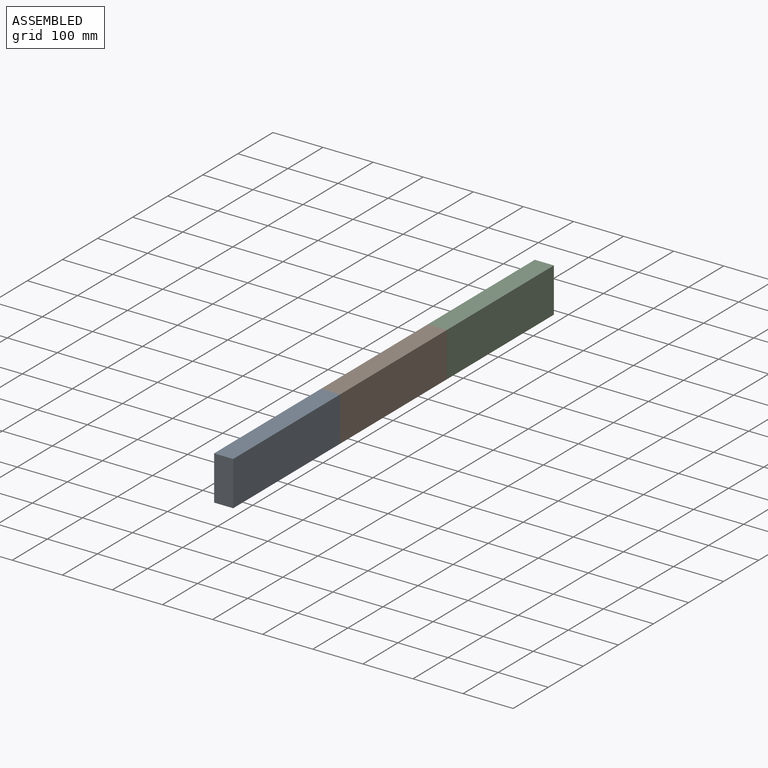
[diagram: assembled view]
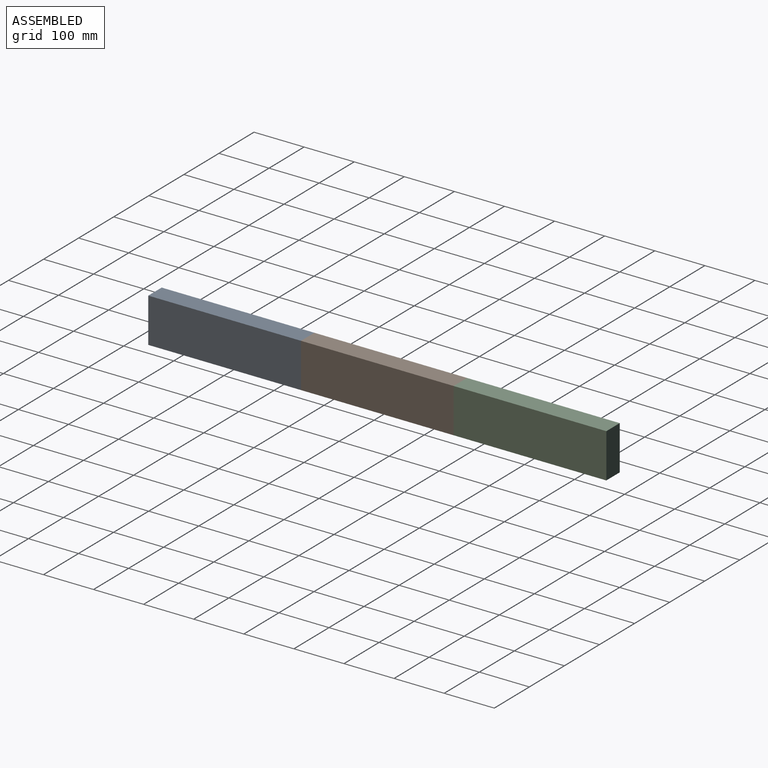
[diagram: assembled view, second angle]
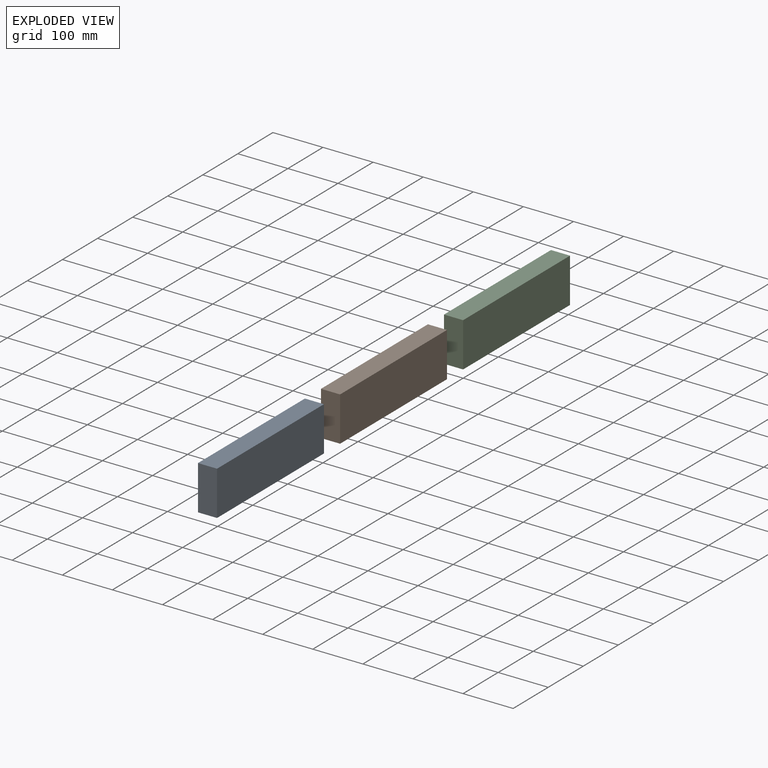
[diagram: exploded view]
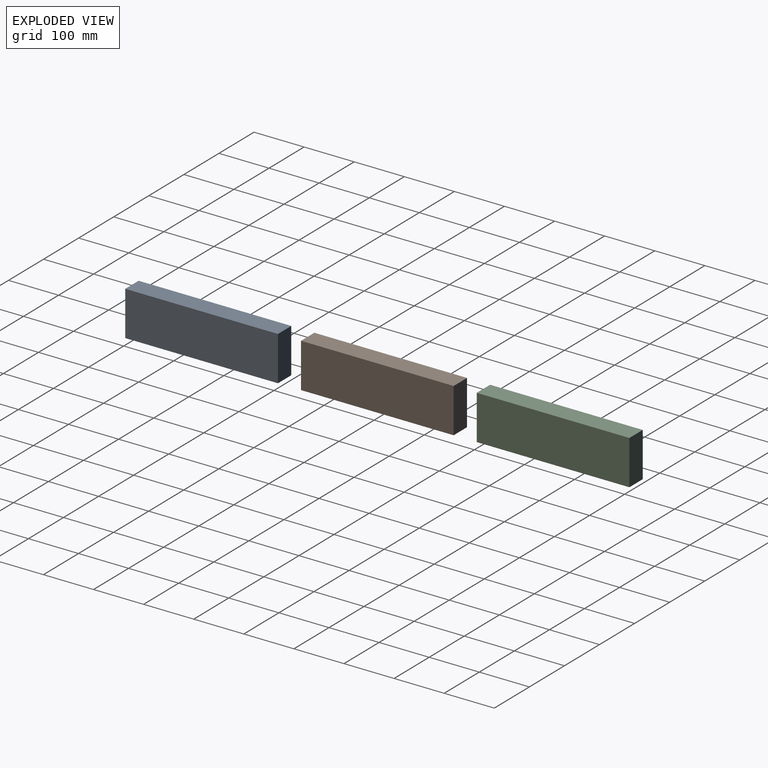
[diagram: exploded view, second angle]
ASSEMBLY  parts=3 mates=2
PART A: 6 faces, bbox 304.8x38.1x88.9 mm
  f0: plane 88.9x38.1mm, normal (1,0,0), area 3387.1mm2, adj f1,f3,f4,f5
  f1: plane 304.8x88.9mm, normal (0,1,0), area 27096.7mm2, adj f0,f2,f4,f5
  f2: plane 88.9x38.1mm, normal (-1,0,0), area 3387.1mm2, adj f1,f3,f4,f5
  f3: plane 304.8x88.9mm, normal (0,-1,0), area 27096.7mm2, adj f0,f2,f4,f5
  f4: plane 304.8x38.1mm, normal (0,0,1), area 11612.9mm2, adj f0,f1,f2,f3
  f5: plane 304.8x38.1mm, normal (0,0,-1), area 11612.9mm2, adj f0,f1,f2,f3
PART B: same geometry as A
PART C: same geometry as A
PLACE A rot(axis=(0,0,1),90deg) t=(-21.34,0,0)mm
PLACE B rot(axis=(0,0,1),90deg) t=(-21.34,304.8,0)mm
PLACE C rot(axis=(0,0,1),90deg) t=(-21.34,609.6,0)mm
MATE fastened C.f2 <-> B.f0  axis (0,-1,0) through (-21.34,457.2,44.45)mm
MATE fastened B.f2 <-> A.f0  axis (0,-1,0) through (-21.34,152.4,44.45)mm
